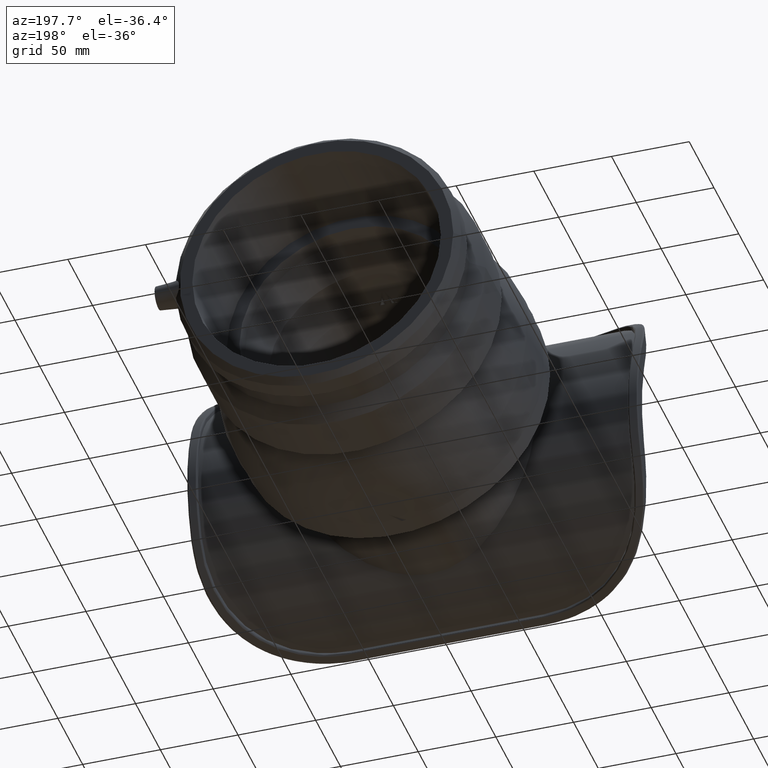
[diagram: clean part render]
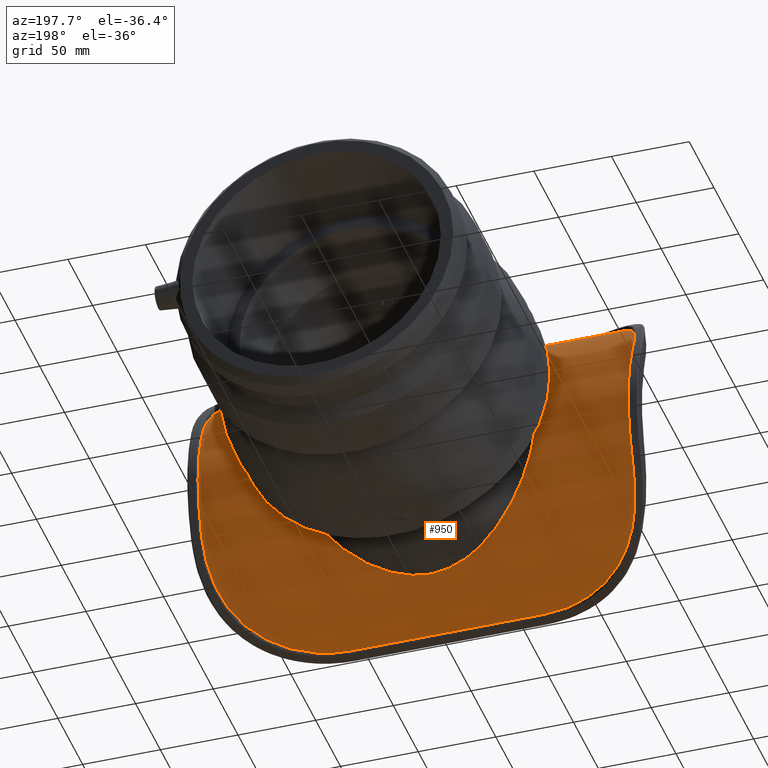
[diagram: same view with one face highlighted and labeled with its STEP entity id]
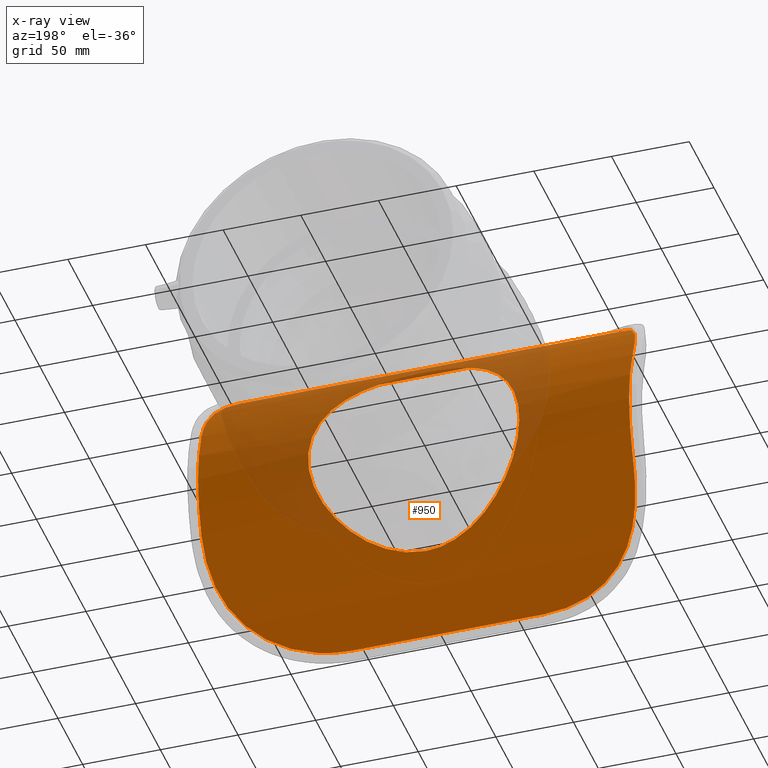
[diagram: x-ray of the same camera — body ghosted, the highlighted face saturated]
A machine part, auxiliary view. The second image highlights one B-rep face of the part: STEP entity #950.
The next image is the same camera in x-ray: the body ghosted, the highlighted face saturated — about 19% of this face is hidden behind the body in this view.
In plain terms, the highlighted cylindrical surface (partial cylindrical patch) has radius 106.24 mm, axis along (1, 0, 0).
Its self-contained STEP definition (entity closure, byte-faithful):
#33=LINE('',#2575,#61);
#38=LINE('',#2650,#66);
#61=VECTOR('',#1307,123.6);
#66=VECTOR('',#1324,123.6);
#97=B_SPLINE_CURVE_WITH_KNOTS('',3,(#1677,#1678,#1679,#1680,#1681,#1682,
#1683,#1684,#1685,#1686,#1687,#1688,#1689,#1690,#1691,#1692,#1693,#1694,
#1695,#1696,#1697,#1698,#1699,#1700,#1701,#1702,#1703,#1704,#1705,#1706,
#1707,#1708,#1709,#1710,#1711,#1712,#1713,#1714,#1715,#1716,#1717,#1718,
#1719,#1720,#1721,#1722,#1723,#1724,#1725,#1726,#1727,#1728,#1729,#1730,
#1731,#1732,#1733,#1734,#1735,#1736,#1737,#1738,#1739,#1740,#1741,#1742),
 .UNSPECIFIED.,.T.,.F.,(4,2,2,2,2,2,2,2,2,2,2,2,2,2,2,2,2,2,2,2,2,2,2,2,
2,2,2,2,2,2,2,2,4),(0.,1.33450055245231,2.66900110490462,4.00350165735693,
5.33800220980923,6.66060654293638,7.98321087606353,9.30581520919067,10.6284195423178,
11.951023875445,13.2736282085721,14.5962325416993,15.9188368748264,17.2533374272787,
18.587837979731,19.9223385321833,21.2568390846356,22.5913396370879,23.9258401895403,
25.2603407419926,26.5948412944449,27.917445627572,29.2400499606992,30.5626542938263,
31.8852586269535,33.2078629600806,34.5304672932077,35.8530716263349,37.175675959462,
38.5101765119144,39.8446770643667,41.179177616819,42.5136781692713),
 .UNSPECIFIED.);
#117=B_SPLINE_CURVE_WITH_KNOTS('',3,(#2552,#2553,#2554,#2555,#2556,#2557,
#2558,#2559,#2560,#2561,#2562,#2563,#2564,#2565,#2566,#2567,#2568,#2569,
#2570,#2571),.UNSPECIFIED.,.F.,.F.,(4,2,2,2,2,2,2,2,2,4),(46.4192162030355,
48.4764019750148,49.4036172903106,50.3308326056065,51.2580479209023,52.1852632361982,
53.9558836504233,55.7265040646483,57.4971244788733,59.2677448930984),
 .UNSPECIFIED.);
#118=B_SPLINE_CURVE_WITH_KNOTS('',3,(#2579,#2580,#2581,#2582,#2583,#2584,
#2585,#2586,#2587,#2588,#2589,#2590,#2591,#2592,#2593,#2594,#2595,#2596,
#2597,#2598),.UNSPECIFIED.,.F.,.F.,(4,2,2,2,2,2,2,2,2,4),(19.7559149643661,
21.5265353785912,23.2971557928162,25.0677762070413,26.8383966212663,27.7656119365622,
28.692827251858,29.6200425671539,30.5472578824498,32.6044436544291),
 .UNSPECIFIED.);
#119=B_SPLINE_CURVE_WITH_KNOTS('',3,(#2606,#2607,#2608,#2609,#2610,#2611,
#2612,#2613,#2614,#2615,#2616,#2617,#2618,#2619,#2620,#2621,#2622,#2623,
#2624,#2625),.UNSPECIFIED.,.F.,.F.,(4,2,2,2,2,2,2,2,2,4),(46.4192162030354,
48.4764019750147,49.4036172903106,50.3308326056065,51.2580479209023,52.1852632361982,
53.9558836504232,55.7265040646483,57.4971244788733,59.2677448930984),
 .UNSPECIFIED.);
#120=B_SPLINE_CURVE_WITH_KNOTS('',3,(#2628,#2629,#2630,#2631,#2632,#2633,
#2634,#2635,#2636,#2637,#2638,#2639,#2640,#2641,#2642,#2643,#2644,#2645,
#2646,#2647),.UNSPECIFIED.,.F.,.F.,(4,2,2,2,2,2,2,2,2,4),(19.7559149643661,
21.5265353785912,23.2971557928162,25.0677762070413,26.8383966212663,27.7656119365622,
28.692827251858,29.6200425671539,30.5472578824498,32.6044436544291),
 .UNSPECIFIED.);
#165=FACE_BOUND('',#358,.T.);
#192=CYLINDRICAL_SURFACE('',#1070,106.24);
#257=FACE_OUTER_BOUND('',#357,.T.);
#357=EDGE_LOOP('',(#836,#837,#838,#839,#840,#841,#842,#843));
#358=EDGE_LOOP('',(#844));
#419=CIRCLE('',#1061,106.24);
#420=CIRCLE('',#1066,106.24);
#457=VERTEX_POINT('',#1676);
#496=VERTEX_POINT('',#2544);
#497=VERTEX_POINT('',#2546);
#498=VERTEX_POINT('',#2550);
#499=VERTEX_POINT('',#2573);
#500=VERTEX_POINT('',#2577);
#501=VERTEX_POINT('',#2600);
#502=VERTEX_POINT('',#2604);
#503=VERTEX_POINT('',#2627);
#546=EDGE_CURVE('',#457,#457,#97,.T.);
#606=EDGE_CURVE('',#497,#496,#419,.F.);
#609=EDGE_CURVE('',#496,#498,#117,.T.);
#611=EDGE_CURVE('',#498,#499,#33,.F.);
#613=EDGE_CURVE('',#499,#500,#118,.T.);
#615=EDGE_CURVE('',#500,#501,#420,.T.);
#617=EDGE_CURVE('',#501,#502,#119,.T.);
#618=EDGE_CURVE('',#503,#497,#120,.T.);
#620=EDGE_CURVE('',#503,#502,#38,.F.);
#836=ORIENTED_EDGE('',*,*,#609,.T.);
#837=ORIENTED_EDGE('',*,*,#611,.T.);
#838=ORIENTED_EDGE('',*,*,#613,.T.);
#839=ORIENTED_EDGE('',*,*,#615,.T.);
#840=ORIENTED_EDGE('',*,*,#617,.T.);
#841=ORIENTED_EDGE('',*,*,#620,.F.);
#842=ORIENTED_EDGE('',*,*,#618,.T.);
#843=ORIENTED_EDGE('',*,*,#606,.T.);
#844=ORIENTED_EDGE('',*,*,#546,.T.);
#950=ADVANCED_FACE('',(#257,#165),#192,.T.);
#1061=AXIS2_PLACEMENT_3D('',#2547,#1298,#1299);
#1066=AXIS2_PLACEMENT_3D('',#2602,#1314,#1315);
#1070=AXIS2_PLACEMENT_3D('',#2651,#1325,#1326);
#1298=DIRECTION('center_axis',(-1.,0.,0.));
#1299=DIRECTION('ref_axis',(0.,-0.299397593983132,0.954128440366973));
#1307=DIRECTION('',(-1.,0.,0.));
#1314=DIRECTION('center_axis',(-1.,0.,0.));
#1315=DIRECTION('ref_axis',(0.,-0.299397593983132,0.954128440366973));
#1324=DIRECTION('',(-1.,0.,0.));
#1325=DIRECTION('center_axis',(1.,0.,0.));
#1326=DIRECTION('ref_axis',(0.,-0.299397593983132,0.954128440366973));
#1676=CARTESIAN_POINT('',(0.,-58.7731808778512,-68.));
#1677=CARTESIAN_POINT('Ctrl Pts',(0.,-58.7731808778512,-68.));
#1678=CARTESIAN_POINT('Ctrl Pts',(4.44833517484103,-58.7731808778512,-68.));
#1679=CARTESIAN_POINT('Ctrl Pts',(8.97747516901442,-58.3983506554921,-67.5573132937129));
#1680=CARTESIAN_POINT('Ctrl Pts',(17.8731456288649,-56.9546601388063,-65.7657685892398));
#1681=CARTESIAN_POINT('Ctrl Pts',(22.2405438987575,-55.8898761889951,-64.4179372616861));
#1682=CARTESIAN_POINT('Ctrl Pts',(30.54783957655,-53.3340070873129,-60.9191544952629));
#1683=CARTESIAN_POINT('Ctrl Pts',(34.4965324714218,-51.8446439423695,-58.7652901384686));
#1684=CARTESIAN_POINT('Ctrl Pts',(41.783890605925,-48.7597585951535,-53.8282134713799));
#1685=CARTESIAN_POINT('Ctrl Pts',(45.122704277421,-47.1664811525987,-51.0438179639494));
#1686=CARTESIAN_POINT('Ctrl Pts',(51.0174264922731,-44.1746192746195,-45.1490957490973));
#1687=CARTESIAN_POINT('Ctrl Pts',(53.7971656353898,-42.6609262395882,-41.8242454663927));
#1688=CARTESIAN_POINT('Ctrl Pts',(58.7434322381962,-39.8535811752401,-34.5342107140188));
#1689=CARTESIAN_POINT('Ctrl Pts',(60.9102837176055,-38.5616147272908,-30.5685970916591));
#1690=CARTESIAN_POINT('Ctrl Pts',(64.4254987847972,-36.4209691595694,-22.2228948792134));
#1691=CARTESIAN_POINT('Ctrl Pts',(65.7767297879044,-35.571394266667,-17.8340779972067));
#1692=CARTESIAN_POINT('Ctrl Pts',(67.5643373879696,-34.4405828392394,-8.92708424211045));
#1693=CARTESIAN_POINT('Ctrl Pts',(68.,-34.16,-4.40868111042382));
#1694=CARTESIAN_POINT('Ctrl Pts',(68.,-34.16,4.40868111042382));
#1695=CARTESIAN_POINT('Ctrl Pts',(67.5643373879696,-34.4405828392394,8.92708424211045));
#1696=CARTESIAN_POINT('Ctrl Pts',(65.7767297879044,-35.571394266667,17.8340779972067));
#1697=CARTESIAN_POINT('Ctrl Pts',(64.4254987847972,-36.4209691595694,22.2228948792134));
#1698=CARTESIAN_POINT('Ctrl Pts',(60.9102837176055,-38.5616147272907,30.5685970916591));
#1699=CARTESIAN_POINT('Ctrl Pts',(58.7434322381962,-39.8535811752401,34.5342107140188));
#1700=CARTESIAN_POINT('Ctrl Pts',(53.7971656353898,-42.6609262395882,41.8242454663927));
#1701=CARTESIAN_POINT('Ctrl Pts',(51.0174264922731,-44.1746192746195,45.1490957490973));
#1702=CARTESIAN_POINT('Ctrl Pts',(45.122704277421,-47.1664811525987,51.0438179639494));
#1703=CARTESIAN_POINT('Ctrl Pts',(41.783890605925,-48.7597585951535,53.8282134713799));
#1704=CARTESIAN_POINT('Ctrl Pts',(34.4965324714218,-51.8446439423696,58.7652901384686));
#1705=CARTESIAN_POINT('Ctrl Pts',(30.54783957655,-53.3340070873129,60.9191544952629));
#1706=CARTESIAN_POINT('Ctrl Pts',(22.2405438987575,-55.8898761889951,64.4179372616862));
#1707=CARTESIAN_POINT('Ctrl Pts',(17.8731456288649,-56.9546601388062,65.7657685892398));
#1708=CARTESIAN_POINT('Ctrl Pts',(8.97747516901441,-58.3983506554921,67.5573132937129));
#1709=CARTESIAN_POINT('Ctrl Pts',(4.44833517484103,-58.7731808778512,68.));
#1710=CARTESIAN_POINT('Ctrl Pts',(-4.44833517484103,-58.7731808778512,68.));
#1711=CARTESIAN_POINT('Ctrl Pts',(-8.97747516901441,-58.3983506554921,67.5573132937129));
#1712=CARTESIAN_POINT('Ctrl Pts',(-17.8731456288649,-56.9546601388063,65.7657685892398));
#1713=CARTESIAN_POINT('Ctrl Pts',(-22.2405438987575,-55.8898761889951,64.4179372616861));
#1714=CARTESIAN_POINT('Ctrl Pts',(-30.54783957655,-53.3340070873129,60.9191544952629));
#1715=CARTESIAN_POINT('Ctrl Pts',(-34.4965324714218,-51.8446439423696,58.7652901384686));
#1716=CARTESIAN_POINT('Ctrl Pts',(-41.783890605925,-48.7597585951535,53.8282134713799));
#1717=CARTESIAN_POINT('Ctrl Pts',(-45.122704277421,-47.1664811525987,51.0438179639494));
#1718=CARTESIAN_POINT('Ctrl Pts',(-51.0174264922731,-44.1746192746195,45.1490957490974));
#1719=CARTESIAN_POINT('Ctrl Pts',(-53.7971656353898,-42.6609262395882,41.8242454663927));
#1720=CARTESIAN_POINT('Ctrl Pts',(-58.7434322381962,-39.8535811752401,34.5342107140188));
#1721=CARTESIAN_POINT('Ctrl Pts',(-60.9102837176055,-38.5616147272908,30.5685970916591));
#1722=CARTESIAN_POINT('Ctrl Pts',(-64.4254987847972,-36.4209691595694,22.2228948792134));
#1723=CARTESIAN_POINT('Ctrl Pts',(-65.7767297879044,-35.571394266667,17.8340779972068));
#1724=CARTESIAN_POINT('Ctrl Pts',(-67.5643373879696,-34.4405828392394,8.92708424211048));
#1725=CARTESIAN_POINT('Ctrl Pts',(-68.,-34.16,4.40868111042384));
#1726=CARTESIAN_POINT('Ctrl Pts',(-68.,-34.16,-4.40868111042382));
#1727=CARTESIAN_POINT('Ctrl Pts',(-67.5643373879696,-34.4405828392394,-8.92708424211046));
#1728=CARTESIAN_POINT('Ctrl Pts',(-65.7767297879044,-35.571394266667,-17.8340779972068));
#1729=CARTESIAN_POINT('Ctrl Pts',(-64.4254987847972,-36.4209691595694,-22.2228948792134));
#1730=CARTESIAN_POINT('Ctrl Pts',(-60.9102837176055,-38.5616147272908,-30.5685970916591));
#1731=CARTESIAN_POINT('Ctrl Pts',(-58.7434322381962,-39.8535811752401,-34.5342107140188));
#1732=CARTESIAN_POINT('Ctrl Pts',(-53.7971656353898,-42.6609262395882,-41.8242454663927));
#1733=CARTESIAN_POINT('Ctrl Pts',(-51.0174264922731,-44.1746192746195,-45.1490957490974));
#1734=CARTESIAN_POINT('Ctrl Pts',(-45.122704277421,-47.1664811525987,-51.0438179639494));
#1735=CARTESIAN_POINT('Ctrl Pts',(-41.783890605925,-48.7597585951535,-53.8282134713799));
#1736=CARTESIAN_POINT('Ctrl Pts',(-34.4965324714218,-51.8446439423696,-58.7652901384686));
#1737=CARTESIAN_POINT('Ctrl Pts',(-30.54783957655,-53.3340070873129,-60.9191544952629));
#1738=CARTESIAN_POINT('Ctrl Pts',(-22.2405438987575,-55.8898761889951,-64.4179372616861));
#1739=CARTESIAN_POINT('Ctrl Pts',(-17.8731456288649,-56.9546601388063,-65.7657685892398));
#1740=CARTESIAN_POINT('Ctrl Pts',(-8.97747516901444,-58.3983506554921,-67.5573132937129));
#1741=CARTESIAN_POINT('Ctrl Pts',(-4.44833517484104,-58.7731808778512,-68.));
#1742=CARTESIAN_POINT('Ctrl Pts',(1.11022302462516E-15,-58.7731808778512,
-68.));
#2544=CARTESIAN_POINT('',(-138.76,-41.236554816601,38.1254342842023));
#2546=CARTESIAN_POINT('',(-138.76,-41.2365548166011,-38.1254342842024));
#2547=CARTESIAN_POINT('Origin',(-138.76,-140.4,0.));
#2550=CARTESIAN_POINT('',(-61.8,-102.693151058702,99.3233665504654));
#2552=CARTESIAN_POINT('Ctrl Pts',(-138.76,-41.236554816601,38.1254342842023));
#2553=CARTESIAN_POINT('Ctrl Pts',(-138.76,-43.762700334501,44.6958851470627));
#2554=CARTESIAN_POINT('Ctrl Pts',(-138.382539211474,-46.9189100529262,50.9339882291512));
#2555=CARTESIAN_POINT('Ctrl Pts',(-136.950335598834,-52.1703829279099,59.2606683336918));
#2556=CARTESIAN_POINT('Ctrl Pts',(-136.358696554905,-53.978199626555,61.8740711400952));
#2557=CARTESIAN_POINT('Ctrl Pts',(-134.813135907009,-57.8491230946817,66.9513329277629));
#2558=CARTESIAN_POINT('Ctrl Pts',(-133.858258439786,-59.9119723657942,69.4150972053444));
#2559=CARTESIAN_POINT('Ctrl Pts',(-131.569886835565,-64.1479086168282,74.043208550784));
#2560=CARTESIAN_POINT('Ctrl Pts',(-130.234543360013,-66.3226020044372,76.2101010393528));
#2561=CARTESIAN_POINT('Ctrl Pts',(-127.240601847687,-70.6144352651842,80.1586885397628));
#2562=CARTESIAN_POINT('Ctrl Pts',(-125.581753622522,-72.7308787620105,81.9409507074051));
#2563=CARTESIAN_POINT('Ctrl Pts',(-120.491377983682,-78.5585769368125,86.5231123867168));
#2564=CARTESIAN_POINT('Ctrl Pts',(-116.497840200746,-82.3406407112733,89.0627452678419));
#2565=CARTESIAN_POINT('Ctrl Pts',(-107.409440850349,-89.2291934676306,93.1912568135826));
#2566=CARTESIAN_POINT('Ctrl Pts',(-102.315706812907,-92.3334082622438,94.7864093739157));
#2567=CARTESIAN_POINT('Ctrl Pts',(-91.4252517108571,-97.4198240767452,97.1985809209318));
#2568=CARTESIAN_POINT('Ctrl Pts',(-85.6154509384055,-99.4076609721987,98.0233962985746));
#2569=CARTESIAN_POINT('Ctrl Pts',(-73.7539116892753,-102.044869076122,99.0850241513577));
#2570=CARTESIAN_POINT('Ctrl Pts',(-67.7020680474168,-102.693151058702,99.3233665504654));
#2571=CARTESIAN_POINT('Ctrl Pts',(-61.8,-102.693151058702,99.3233665504654));
#2573=CARTESIAN_POINT('',(61.8,-102.693151058702,99.3233665504654));
#2575=CARTESIAN_POINT('',(0.,-102.693151058702,99.3233665504654));
#2577=CARTESIAN_POINT('',(138.76,-41.236554816601,38.1254342842023));
#2579=CARTESIAN_POINT('Ctrl Pts',(61.8,-102.693151058702,99.3233665504654));
#2580=CARTESIAN_POINT('Ctrl Pts',(67.7020680474168,-102.693151058702,99.3233665504654));
#2581=CARTESIAN_POINT('Ctrl Pts',(73.7539116892753,-102.044869076122,99.0850241513577));
#2582=CARTESIAN_POINT('Ctrl Pts',(85.6154509384054,-99.4076609721987,98.0233962985746));
#2583=CARTESIAN_POINT('Ctrl Pts',(91.4252517108571,-97.4198240767452,97.1985809209318));
#2584=CARTESIAN_POINT('Ctrl Pts',(102.315706812907,-92.3334082622439,94.7864093739157));
#2585=CARTESIAN_POINT('Ctrl Pts',(107.409440850349,-89.2291934676306,93.1912568135826));
#2586=CARTESIAN_POINT('Ctrl Pts',(116.497840200746,-82.3406407112733,89.0627452678418));
#2587=CARTESIAN_POINT('Ctrl Pts',(120.491377983682,-78.5585769368125,86.5231123867168));
#2588=CARTESIAN_POINT('Ctrl Pts',(125.581753622522,-72.7308787620105,81.9409507074051));
#2589=CARTESIAN_POINT('Ctrl Pts',(127.240601847687,-70.6144352651842,80.1586885397628));
#2590=CARTESIAN_POINT('Ctrl Pts',(130.234543360013,-66.3226020044372,76.2101010393527));
#2591=CARTESIAN_POINT('Ctrl Pts',(131.569886835565,-64.1479086168282,74.0432085507839));
#2592=CARTESIAN_POINT('Ctrl Pts',(133.858258439786,-59.9119723657942,69.4150972053444));
#2593=CARTESIAN_POINT('Ctrl Pts',(134.813135907009,-57.8491230946817,66.9513329277629));
#2594=CARTESIAN_POINT('Ctrl Pts',(136.358696554905,-53.9781996265549,61.8740711400952));
#2595=CARTESIAN_POINT('Ctrl Pts',(136.950335598834,-52.1703829279099,59.2606683336917));
#2596=CARTESIAN_POINT('Ctrl Pts',(138.382539211474,-46.9189100529261,50.9339882291512));
#2597=CARTESIAN_POINT('Ctrl Pts',(138.76,-43.762700334501,44.6958851470627));
#2598=CARTESIAN_POINT('Ctrl Pts',(138.76,-41.236554816601,38.1254342842023));
#2600=CARTESIAN_POINT('',(138.76,-41.2365548166011,-38.1254342842024));
#2602=CARTESIAN_POINT('Origin',(138.76,-140.4,0.));
#2604=CARTESIAN_POINT('',(61.8,-102.693151058702,-99.3233665504654));
#2606=CARTESIAN_POINT('Ctrl Pts',(138.76,-41.2365548166011,-38.1254342842024));
#2607=CARTESIAN_POINT('Ctrl Pts',(138.76,-43.762700334501,-44.6958851470627));
#2608=CARTESIAN_POINT('Ctrl Pts',(138.382539211474,-46.9189100529262,-50.9339882291512));
#2609=CARTESIAN_POINT('Ctrl Pts',(136.950335598834,-52.17038292791,-59.2606683336918));
#2610=CARTESIAN_POINT('Ctrl Pts',(136.358696554905,-53.978199626555,-61.8740711400953));
#2611=CARTESIAN_POINT('Ctrl Pts',(134.813135907009,-57.8491230946818,-66.9513329277629));
#2612=CARTESIAN_POINT('Ctrl Pts',(133.858258439786,-59.9119723657942,-69.4150972053444));
#2613=CARTESIAN_POINT('Ctrl Pts',(131.569886835565,-64.1479086168282,-74.043208550784));
#2614=CARTESIAN_POINT('Ctrl Pts',(130.234543360013,-66.3226020044373,-76.2101010393528));
#2615=CARTESIAN_POINT('Ctrl Pts',(127.240601847687,-70.6144352651842,-80.1586885397628));
#2616=CARTESIAN_POINT('Ctrl Pts',(125.581753622522,-72.7308787620105,-81.9409507074051));
#2617=CARTESIAN_POINT('Ctrl Pts',(120.491377983682,-78.5585769368125,-86.5231123867168));
#2618=CARTESIAN_POINT('Ctrl Pts',(116.497840200746,-82.3406407112734,-89.0627452678419));
#2619=CARTESIAN_POINT('Ctrl Pts',(107.409440850349,-89.2291934676306,-93.1912568135826));
#2620=CARTESIAN_POINT('Ctrl Pts',(102.315706812907,-92.3334082622439,-94.7864093739158));
#2621=CARTESIAN_POINT('Ctrl Pts',(91.4252517108571,-97.4198240767452,-97.1985809209318));
#2622=CARTESIAN_POINT('Ctrl Pts',(85.6154509384054,-99.4076609721988,-98.0233962985747));
#2623=CARTESIAN_POINT('Ctrl Pts',(73.7539116892753,-102.044869076122,-99.0850241513578));
#2624=CARTESIAN_POINT('Ctrl Pts',(67.7020680474168,-102.693151058702,-99.3233665504654));
#2625=CARTESIAN_POINT('Ctrl Pts',(61.8,-102.693151058702,-99.3233665504654));
#2627=CARTESIAN_POINT('',(-61.8,-102.693151058702,-99.3233665504654));
#2628=CARTESIAN_POINT('Ctrl Pts',(-61.8,-102.693151058702,-99.3233665504654));
#2629=CARTESIAN_POINT('Ctrl Pts',(-67.7020680474168,-102.693151058702,-99.3233665504654));
#2630=CARTESIAN_POINT('Ctrl Pts',(-73.7539116892753,-102.044869076122,-99.0850241513578));
#2631=CARTESIAN_POINT('Ctrl Pts',(-85.6154509384054,-99.4076609721988,-98.0233962985747));
#2632=CARTESIAN_POINT('Ctrl Pts',(-91.4252517108571,-97.4198240767453,-97.1985809209318));
#2633=CARTESIAN_POINT('Ctrl Pts',(-102.315706812907,-92.3334082622439,-94.7864093739158));
#2634=CARTESIAN_POINT('Ctrl Pts',(-107.409440850349,-89.2291934676307,-93.1912568135826));
#2635=CARTESIAN_POINT('Ctrl Pts',(-116.497840200746,-82.3406407112734,-89.0627452678419));
#2636=CARTESIAN_POINT('Ctrl Pts',(-120.491377983682,-78.5585769368125,-86.5231123867168));
#2637=CARTESIAN_POINT('Ctrl Pts',(-125.581753622522,-72.7308787620105,-81.9409507074051));
#2638=CARTESIAN_POINT('Ctrl Pts',(-127.240601847687,-70.6144352651842,-80.1586885397628));
#2639=CARTESIAN_POINT('Ctrl Pts',(-130.234543360013,-66.3226020044373,-76.2101010393528));
#2640=CARTESIAN_POINT('Ctrl Pts',(-131.569886835565,-64.1479086168282,-74.043208550784));
#2641=CARTESIAN_POINT('Ctrl Pts',(-133.858258439786,-59.9119723657942,-69.4150972053444));
#2642=CARTESIAN_POINT('Ctrl Pts',(-134.813135907009,-57.8491230946818,-66.9513329277629));
#2643=CARTESIAN_POINT('Ctrl Pts',(-136.358696554905,-53.978199626555,-61.8740711400952));
#2644=CARTESIAN_POINT('Ctrl Pts',(-136.950335598834,-52.17038292791,-59.2606683336918));
#2645=CARTESIAN_POINT('Ctrl Pts',(-138.382539211474,-46.9189100529262,-50.9339882291512));
#2646=CARTESIAN_POINT('Ctrl Pts',(-138.76,-43.762700334501,-44.6958851470627));
#2647=CARTESIAN_POINT('Ctrl Pts',(-138.76,-41.2365548166011,-38.1254342842024));
#2650=CARTESIAN_POINT('',(0.,-102.693151058702,-99.3233665504654));
#2651=CARTESIAN_POINT('Origin',(0.,-140.4,0.));